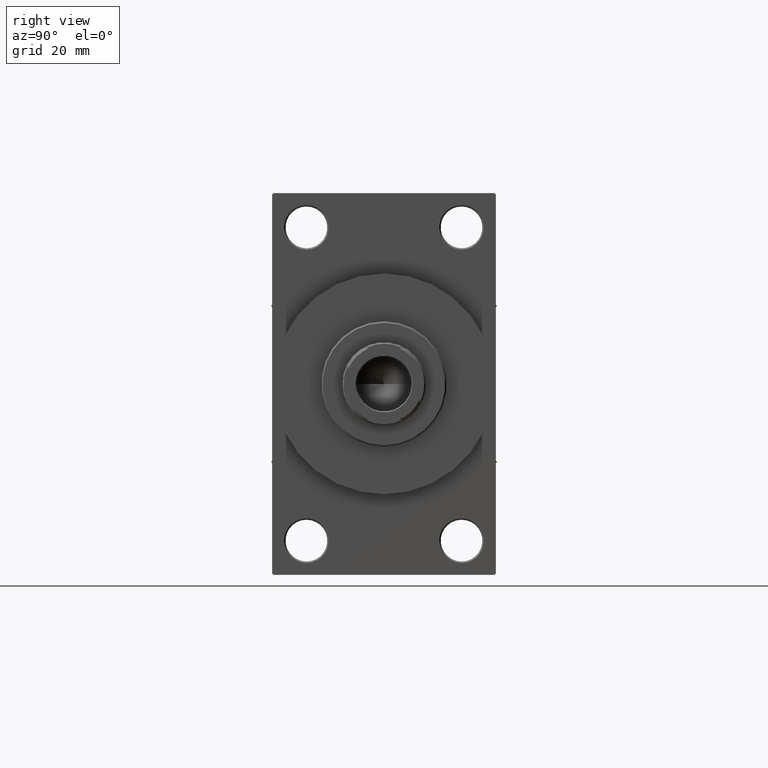
[diagram: clean part render]
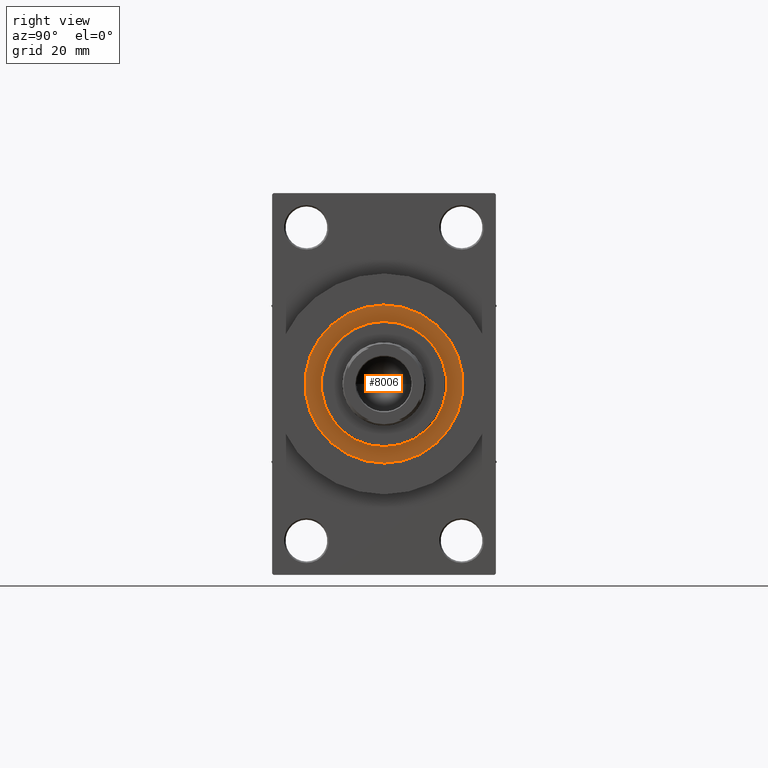
[diagram: same view with one face highlighted and labeled with its STEP entity id]
A machine part, right view. The second image highlights one B-rep face of the part: STEP entity #8006.
In plain terms, the highlighted planar face has unit normal (1, -0, -0).
Its self-contained STEP definition (entity closure, byte-faithful):
#202 = CARTESIAN_POINT ( 'NONE',  ( -26.50000000000000355, 0.000000000000000000, 43.25999999999999801 ) ) ;
#619 = FACE_OUTER_BOUND ( 'NONE', #25103, .T. ) ;
#6084 = VERTEX_POINT ( 'NONE', #30544 ) ;
#8006 = ADVANCED_FACE ( 'NONE', ( #45026, #619 ), #19475, .T. ) ;
#8643 = DIRECTION ( 'NONE',  ( 1.000000000000000000, 0.000000000000000000, 0.000000000000000000 ) ) ;
#9671 = AXIS2_PLACEMENT_3D ( 'NONE', #26644, #44539, #11816 ) ;
#10509 = EDGE_CURVE ( 'NONE', #37937, #6084, #18830, .T. ) ;
#10565 = ORIENTED_EDGE ( 'NONE', *, *, #33513, .T. ) ;
#11816 = DIRECTION ( 'NONE',  ( 1.000000000000000000, 0.000000000000000000, -0.000000000000000000 ) ) ;
#11948 = AXIS2_PLACEMENT_3D ( 'NONE', #29664, #14620, #22248 ) ;
#13771 = ORIENTED_EDGE ( 'NONE', *, *, #19889, .T. ) ;
#14348 = CARTESIAN_POINT ( 'NONE',  ( -21.00000000000000000, 0.000000000000000000, 43.25999999999999801 ) ) ;
#14620 = DIRECTION ( 'NONE',  ( 0.000000000000000000, 0.000000000000000000, 1.000000000000000000 ) ) ;
#15496 = AXIS2_PLACEMENT_3D ( 'NONE', #30622, #29908, #8643 ) ;
#16067 = DIRECTION ( 'NONE',  ( 0.000000000000000000, 0.000000000000000000, 1.000000000000000000 ) ) ;
#18830 = CIRCLE ( 'NONE', #11948, 21.00000000000000000 ) ;
#19315 = CIRCLE ( 'NONE', #15496, 26.50000000000000355 ) ;
#19475 = PLANE ( 'NONE',  #9671 ) ;
#19889 = EDGE_CURVE ( 'NONE', #36105, #22621, #46589, .T. ) ;
#20769 = ORIENTED_EDGE ( 'NONE', *, *, #34495, .F. ) ;
#21476 = DIRECTION ( 'NONE',  ( 0.000000000000000000, 0.000000000000000000, 1.000000000000000000 ) ) ;
#22248 = DIRECTION ( 'NONE',  ( 1.000000000000000000, 0.000000000000000000, 0.000000000000000000 ) ) ;
#22621 = VERTEX_POINT ( 'NONE', #202 ) ;
#25063 = CARTESIAN_POINT ( 'NONE',  ( 0.000000000000000000, 0.000000000000000000, 43.25999999999999801 ) ) ;
#25103 = EDGE_LOOP ( 'NONE', ( #10565, #13771 ) ) ;
#26329 = CARTESIAN_POINT ( 'NONE',  ( 0.000000000000000000, 0.000000000000000000, 43.25999999999999801 ) ) ;
#26644 = CARTESIAN_POINT ( 'NONE',  ( 0.000000000000000000, 0.000000000000000000, 43.25999999999999801 ) ) ;
#29664 = CARTESIAN_POINT ( 'NONE',  ( 0.000000000000000000, 0.000000000000000000, 43.25999999999999801 ) ) ;
#29908 = DIRECTION ( 'NONE',  ( 0.000000000000000000, 0.000000000000000000, 1.000000000000000000 ) ) ;
#30544 = CARTESIAN_POINT ( 'NONE',  ( 21.00000000000000000, 2.571758278209441661E-15, 43.25999999999999801 ) ) ;
#30622 = CARTESIAN_POINT ( 'NONE',  ( 0.000000000000000000, 0.000000000000000000, 43.25999999999999801 ) ) ;
#33513 = EDGE_CURVE ( 'NONE', #22621, #36105, #19315, .T. ) ;
#33517 = ORIENTED_EDGE ( 'NONE', *, *, #10509, .F. ) ;
#34389 = AXIS2_PLACEMENT_3D ( 'NONE', #25063, #21476, #39145 ) ;
#34495 = EDGE_CURVE ( 'NONE', #6084, #37937, #36111, .T. ) ;
#36105 = VERTEX_POINT ( 'NONE', #45291 ) ;
#36111 = CIRCLE ( 'NONE', #42198, 21.00000000000000000 ) ;
#36857 = EDGE_LOOP ( 'NONE', ( #33517, #20769 ) ) ;
#37937 = VERTEX_POINT ( 'NONE', #14348 ) ;
#39145 = DIRECTION ( 'NONE',  ( 1.000000000000000000, 0.000000000000000000, 0.000000000000000000 ) ) ;
#42198 = AXIS2_PLACEMENT_3D ( 'NONE', #26329, #16067, #45196 ) ;
#44539 = DIRECTION ( 'NONE',  ( 0.000000000000000000, 0.000000000000000000, 1.000000000000000000 ) ) ;
#45026 = FACE_BOUND ( 'NONE', #36857, .T. ) ;
#45196 = DIRECTION ( 'NONE',  ( 1.000000000000000000, 0.000000000000000000, 0.000000000000000000 ) ) ;
#45291 = CARTESIAN_POINT ( 'NONE',  ( 26.50000000000000355, 3.245314017740486554E-15, 43.25999999999999801 ) ) ;
#46589 = CIRCLE ( 'NONE', #34389, 26.50000000000000355 ) ;